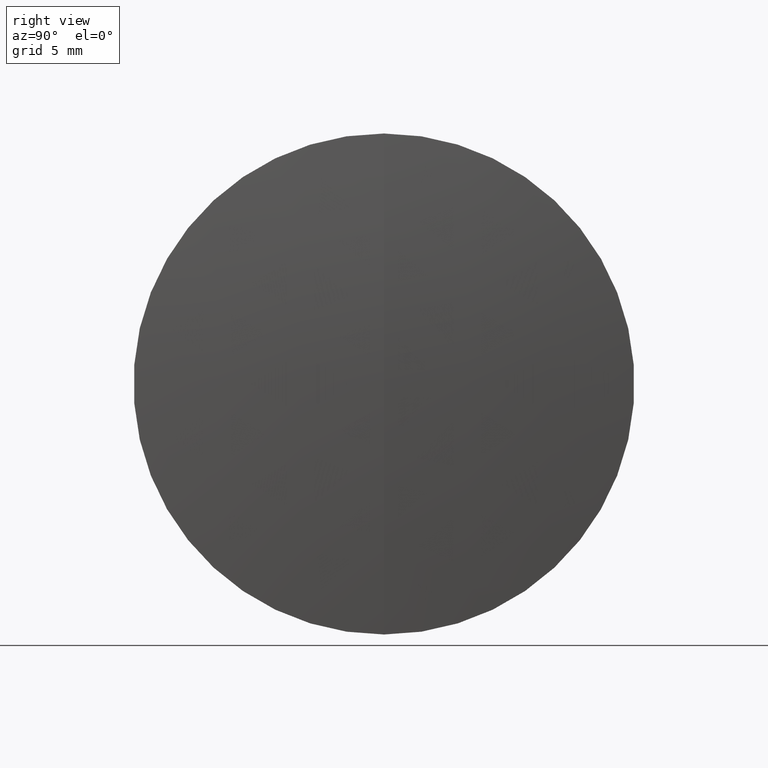
[diagram: clean part render]
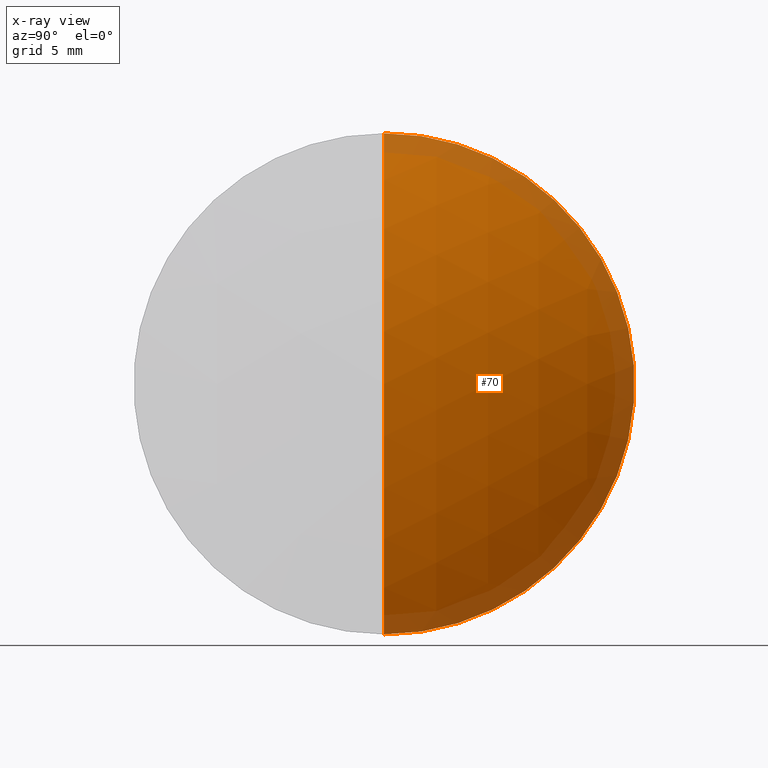
[diagram: x-ray — body ghosted, one internal face saturated and labeled with its STEP entity id]
A machine part, right view, then the same camera in x-ray: the body is ghosted and one INTERNAL B-rep face — a face not visible from any outside direction — is saturated and labeled: STEP entity #70.
In plain terms, the highlighted spherical surface has radius 25.05 mm.
Its self-contained STEP definition (entity closure, byte-faithful):
#5 = VERTEX_POINT ( 'NONE', #101 ) ;
#28 = DIRECTION ( 'NONE',  ( 0.0000000000000000000, -1.000000000000000000, 0.0000000000000000000 ) ) ;
#29 = CARTESIAN_POINT ( 'NONE',  ( 286.0709410747099400, 0.0000000000000000000, 12.70000000000000800 ) ) ;
#34 = DIRECTION ( 'NONE',  ( 0.0000000000000000000, 0.0000000000000000000, -1.000000000000000000 ) ) ;
#38 = CIRCLE ( 'NONE', #74, 25.05000000000001800 ) ;
#69 = AXIS2_PLACEMENT_3D ( 'NONE', #164, #179, #199 ) ;
#70 = ADVANCED_FACE ( 'NONE', ( #95 ), #88, .T. ) ;
#74 = AXIS2_PLACEMENT_3D ( 'NONE', #232, #114, #98 ) ;
#88 = SPHERICAL_SURFACE ( 'NONE', #293, 25.05000000000001800 ) ;
#95 = FACE_OUTER_BOUND ( 'NONE', #202, .T. ) ;
#98 = DIRECTION ( 'NONE',  ( 0.0000000000000000000, -1.224646799147353200E-016, 1.000000000000000000 ) ) ;
#101 = CARTESIAN_POINT ( 'NONE',  ( 289.5289865545651700, 0.0000000000000000000, 8.472764019839290200E-015 ) ) ;
#114 = DIRECTION ( 'NONE',  ( -0.0000000000000000000, 1.000000000000000000, 1.224646799147353200E-016 ) ) ;
#120 = VERTEX_POINT ( 'NONE', #270 ) ;
#125 = DIRECTION ( 'NONE',  ( 0.0000000000000000000, 0.0000000000000000000, 1.000000000000000000 ) ) ;
#138 = CARTESIAN_POINT ( 'NONE',  ( 264.4789865545651500, 0.0000000000000000000, 6.938893903907228400E-015 ) ) ;
#140 = ORIENTED_EDGE ( 'NONE', *, *, #314, .F. ) ;
#158 = EDGE_CURVE ( 'NONE', #5, #120, #38, .T. ) ;
#164 = CARTESIAN_POINT ( 'NONE',  ( 286.0709410747099400, 0.0000000000000000000, 0.0000000000000000000 ) ) ;
#179 = DIRECTION ( 'NONE',  ( -1.000000000000000000, -0.0000000000000000000, -0.0000000000000000000 ) ) ;
#199 = DIRECTION ( 'NONE',  ( 0.0000000000000000000, 0.0000000000000000000, 1.000000000000000000 ) ) ;
#202 = EDGE_LOOP ( 'NONE', ( #234, #342, #140 ) ) ;
#226 = VERTEX_POINT ( 'NONE', #29 ) ;
#232 = CARTESIAN_POINT ( 'NONE',  ( 264.4789865545651500, 0.0000000000000000000, 6.938893903907228400E-015 ) ) ;
#234 = ORIENTED_EDGE ( 'NONE', *, *, #256, .F. ) ;
#236 = CARTESIAN_POINT ( 'NONE',  ( 264.4789865545651500, 0.0000000000000000000, 6.938893903907228400E-015 ) ) ;
#256 = EDGE_CURVE ( 'NONE', #5, #226, #304, .T. ) ;
#270 = CARTESIAN_POINT ( 'NONE',  ( 286.0709410747099400, 1.555301434917139600E-015, -12.70000000000001000 ) ) ;
#277 = CIRCLE ( 'NONE', #69, 12.70000000000000800 ) ;
#281 = DIRECTION ( 'NONE',  ( 0.0000000000000000000, 1.000000000000000000, 0.0000000000000000000 ) ) ;
#288 = AXIS2_PLACEMENT_3D ( 'NONE', #138, #28, #34 ) ;
#293 = AXIS2_PLACEMENT_3D ( 'NONE', #236, #281, #125 ) ;
#304 = CIRCLE ( 'NONE', #288, 25.05000000000001800 ) ;
#314 = EDGE_CURVE ( 'NONE', #226, #120, #277, .T. ) ;
#342 = ORIENTED_EDGE ( 'NONE', *, *, #158, .T. ) ;